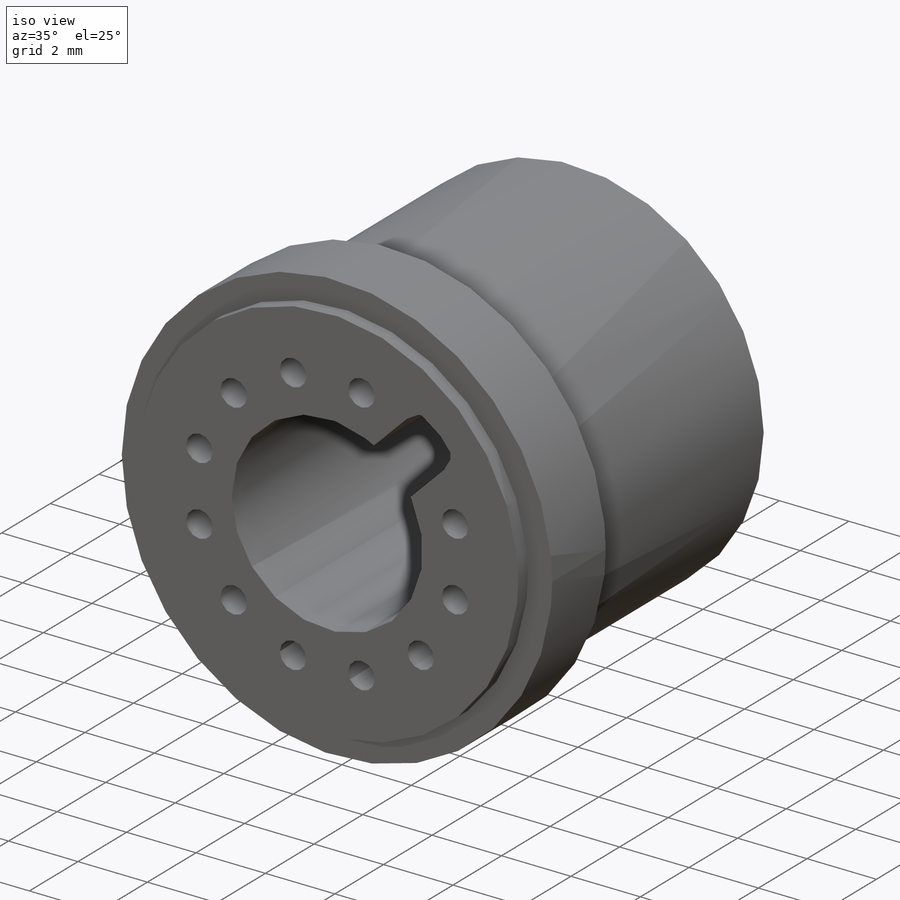
[diagram: iso view]
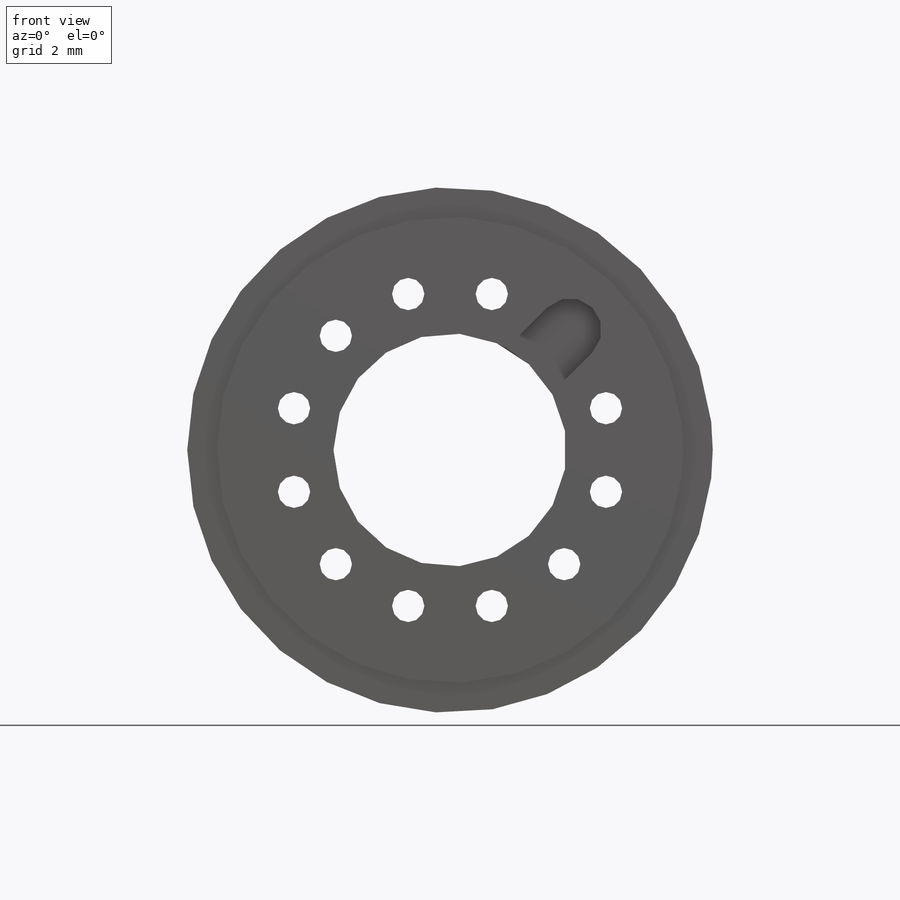
[diagram: front view]
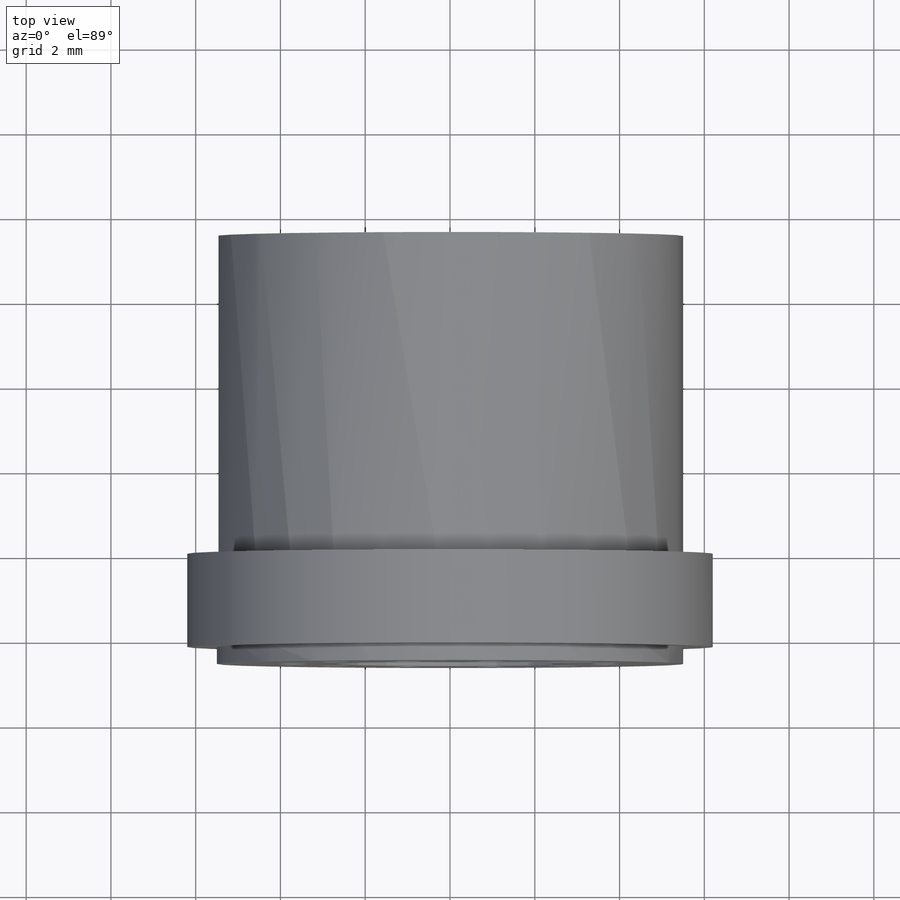
[diagram: top view]
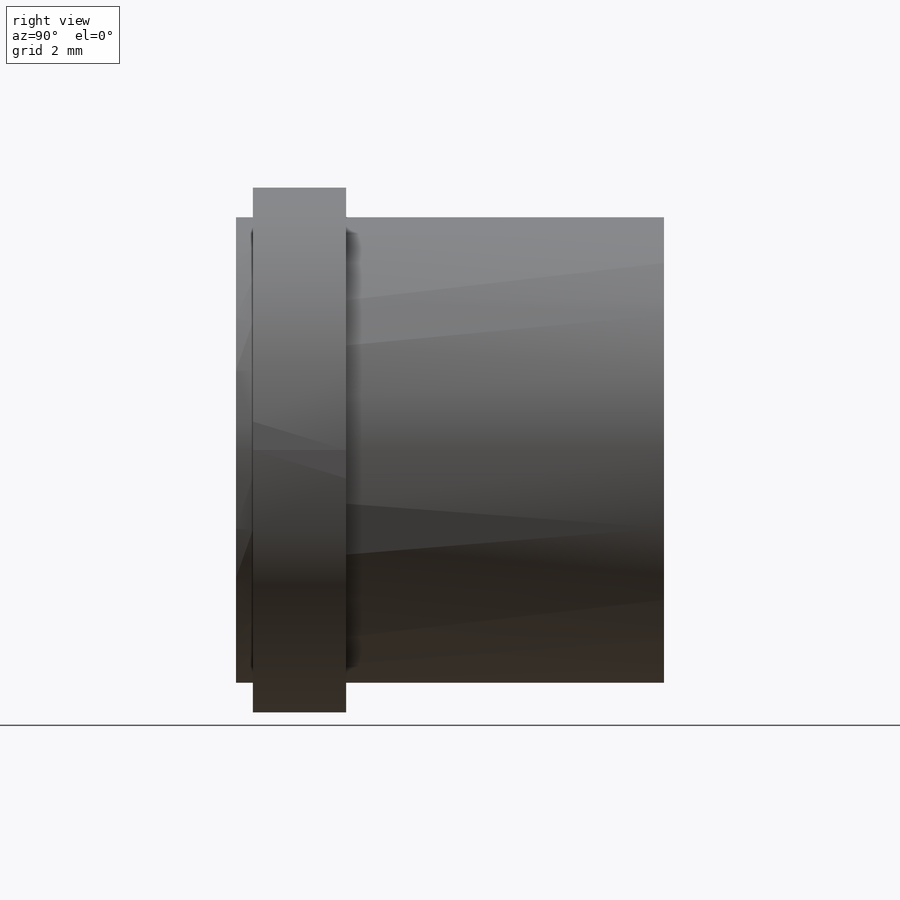
[diagram: right view]
SOLIDWORKS PART (.sldprt)
format: sldprt  version: not decoded by parser v0  size: 262,656 bytes
history: native  units: mm
features: sketch x6, extrude x4, cut_extrude x2, material x1, fillet x1, pattern_circular x1 (+14 scaffold rows collapsed)
feature tree (29):
  scaffold x14  (default folders/planes/origin — collapsed)
  material  "ПК/АБС"
  sketch  "Эскиз1"  dims[D1=12.4mm D4=2.2mm D5=2.2mm D6=3.0mm D7=3.0mm D8=11.0mm D9=5.5mm D2=9.0mm D3=9.0mm]
  extrude  "Вытянуть1"  Depth=2.2mm
  extrude  "Вытянуть3"  [1 undecoded]
  sketch  "Эскиз1<5>"  dims[D1=7.5mm]
  extrude  "Вытянуть4"  [1 undecoded]
  sketch  "Эскиз1<6>"  dims[D1=0.4mm]
  fillet  "Скругление1"  Radius=0.8mm
  extrude  "Вытянуть2"  [1 undecoded]
  sketch  "Эскиз1<3>"  dims[D1=0.6mm]
  sketch  "Эскиз2"  dims[c1.D1=0.762mm c1.D2=3.81mm c1.D3=~3.786547mm c2.D3=15.0deg]
  cut_extrude  "Вырез-Вытянуть1"  [1 undecoded]
  pattern_circular  "Круговой массив1"  Count=12 Angle=30deg
  sketch  "Эскиз4"  dims[c1.D1=45.0deg c2.D1=4.0mm c2.D2=1.5mm c2.D3=~2.862458mm c3.D3=135.0deg]
  cut_extrude  "Вырез-Вытянуть2"  Depth=2mm
decode coverage: 10 of 14 modeling features carry decoded parameters
note: ~ marks probable driven/reference dimensions
note: 4 parameter values undecoded
summary: no parameter record found for 4 features
note: suppression state not decoded; provenance and decode notes live in map.json
